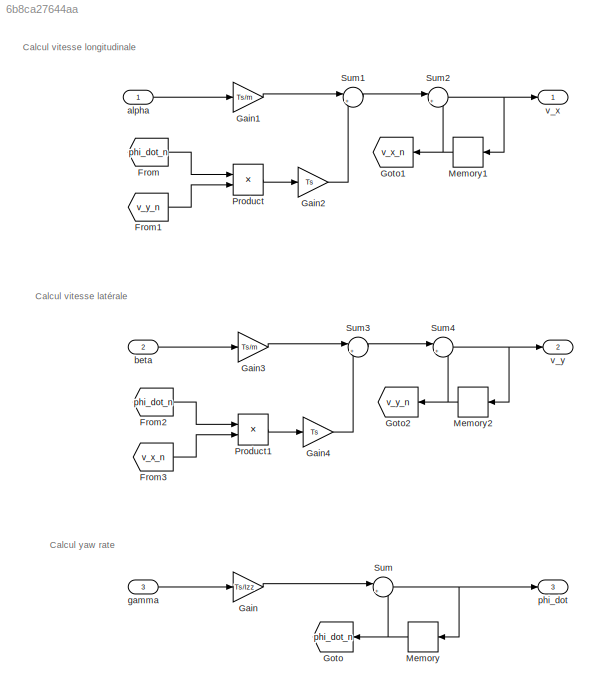
MODEL slx_6b8ca27644aa
KIND model
CONFIG AbsTol = auto
CONFIG EnableMultiTasking = off
CONFIG FixedStep = Ts
CONFIG MaxStep = auto
CONFIG MinStep = auto
CONFIG RelTol = 1e-3
CONFIG SampleTimeConstraint = Unconstrained
CONFIG SolverName = FixedStepAuto
CONFIG StartTime = 0.0
CONFIG StopTime = 10.0
BLOCK [From] From
  GotoTag = phi_dot_n
BLOCK [From] From1
  GotoTag = v_y_n
BLOCK [From] From2
  GotoTag = phi_dot_n
BLOCK [From] From3
  GotoTag = v_x_n
BLOCK [Gain] Gain
  Gain = Ts/Izz
BLOCK [Gain] Gain1
  Gain = Ts/m
BLOCK [Gain] Gain2
  Gain = Ts
BLOCK [Gain] Gain3
  Gain = Ts/m
BLOCK [Gain] Gain4
  Gain = Ts
BLOCK [Goto] Goto
  GotoTag = phi_dot_n
  NameLocation = top
BLOCK [Goto] Goto1
  GotoTag = v_x_n
  NameLocation = top
BLOCK [Goto] Goto2
  GotoTag = v_y_n
  NameLocation = top
BLOCK [Memory] Memory
  NameLocation = top
BLOCK [Memory] Memory1
  InitialCondition = v0
  NameLocation = top
BLOCK [Memory] Memory2
  NameLocation = top
BLOCK [Product] Product
BLOCK [Product] Product1
BLOCK [Sum] Sum
  Inputs = |++
BLOCK [Sum] Sum1
  Inputs = |++
BLOCK [Sum] Sum2
  Inputs = |++
BLOCK [Sum] Sum3
  Inputs = |+-
BLOCK [Sum] Sum4
  Inputs = |++
BLOCK [Inport] alpha
BLOCK [Inport] beta
  Port = 2
BLOCK [Inport] gamma
  Port = 3
BLOCK [Outport] phi_dot
  Port = 3
BLOCK [Outport] v_x
BLOCK [Outport] v_y
  Port = 2
ANNOTATION (root): Calcul vitesse latérale
ANNOTATION (root): Calcul vitesse longitudinale
ANNOTATION (root): Calcul yaw rate
LINE From1:1 -> Product:2
LINE From2:1 -> Product1:1
LINE From3:1 -> Product1:2
LINE From:1 -> Product:1
LINE Gain1:1 -> Sum1:1
LINE Gain2:1 -> Sum1:2
LINE Gain3:1 -> Sum3:1
LINE Gain4:1 -> Sum3:2
LINE Gain:1 -> Sum:1
NET Memory1:1 -> Goto1:1, Sum2:2
NET Memory2:1 -> Goto2:1, Sum4:2
NET Memory:1 -> Goto:1, Sum:2
LINE Product1:1 -> Gain4:1
LINE Product:1 -> Gain2:1
LINE Sum1:1 -> Sum2:1
NET Sum2:1 -> Memory1:1, v_x:1
LINE Sum3:1 -> Sum4:1
NET Sum4:1 -> Memory2:1, v_y:1
NET Sum:1 -> Memory:1, phi_dot:1
LINE alpha:1 -> Gain1:1
LINE beta:1 -> Gain3:1
LINE gamma:1 -> Gain:1
note: NET lines group one-source signal fan-out (src -> all destinations, sorted); 1:1 wires keep LINE
